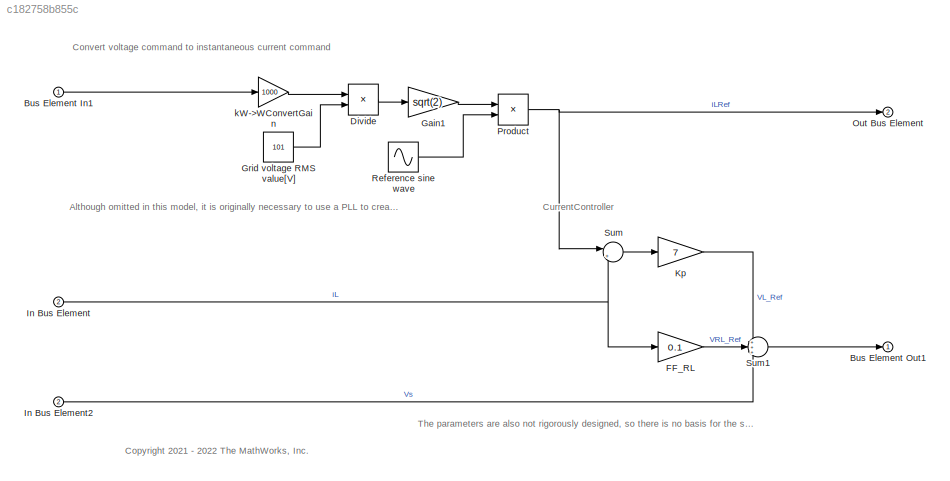
MODEL slx_c182758b855c
KIND model
BLOCK [Inport] Bus Element In1
BLOCK [Outport] Bus Element Out1
BLOCK [Product] Divide
  Inputs = */
BLOCK [Gain] FF_RL
  Gain = 0.1
BLOCK [Gain] Gain1
  Gain = sqrt(2)
BLOCK [Constant] Grid voltage RMS value[V]
  Value = 101
BLOCK [Inport] In Bus Element
  Port = 2
BLOCK [Inport] In Bus Element2
  Port = 2
BLOCK [Gain] Kp
  Gain = 7
BLOCK [Outport] Out Bus Element
  Port = 2
BLOCK [Product] Product
BLOCK [Sin] Reference sine wave
  Amplitude = -1
  Frequency = 2*pi*60
  SampleTime = 1/10000
BLOCK [Sum] Sum
  Inputs = |+-
BLOCK [Sum] Sum1
  Inputs = +++
BLOCK [Gain] kW->WConvertGain
  Gain = 1000
ANNOTATION (root): <copyright redacted>
ANNOTATION (root): Although omitted in this model, it is originally necessary to use a PLL to create a Reference sine wave synchronized with the grid voltage.
ANNOTATION (root): Convert voltage command to instantaneous current command
ANNOTATION (root): CurrentController
ANNOTATION (root): The parameters are also not rigorously designed, so there is no basis for the set values.
LINE Bus Element In1:1 -> kW->WConvertGain:1
LINE Divide:1 -> Gain1:1
LINE FF_RL:1 -> Sum1:2
LINE Gain1:1 -> Product:1
LINE Grid voltage RMS value[V]:1 -> Divide:2
LINE In Bus Element2:1 -> Sum1:3
NET In Bus Element:1 -> FF_RL:1, Sum:2
LINE Kp:1 -> Sum1:1
NET Product:1 -> Out Bus Element:1, Sum:1
LINE Reference sine wave:1 -> Product:2
LINE Sum1:1 -> Bus Element Out1:1
LINE Sum:1 -> Kp:1
LINE kW->WConvertGain:1 -> Divide:1
note: NET lines group one-source signal fan-out (src -> all destinations, sorted); 1:1 wires keep LINE
